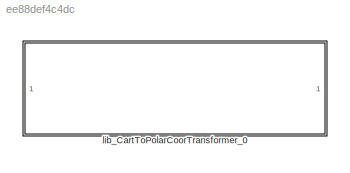
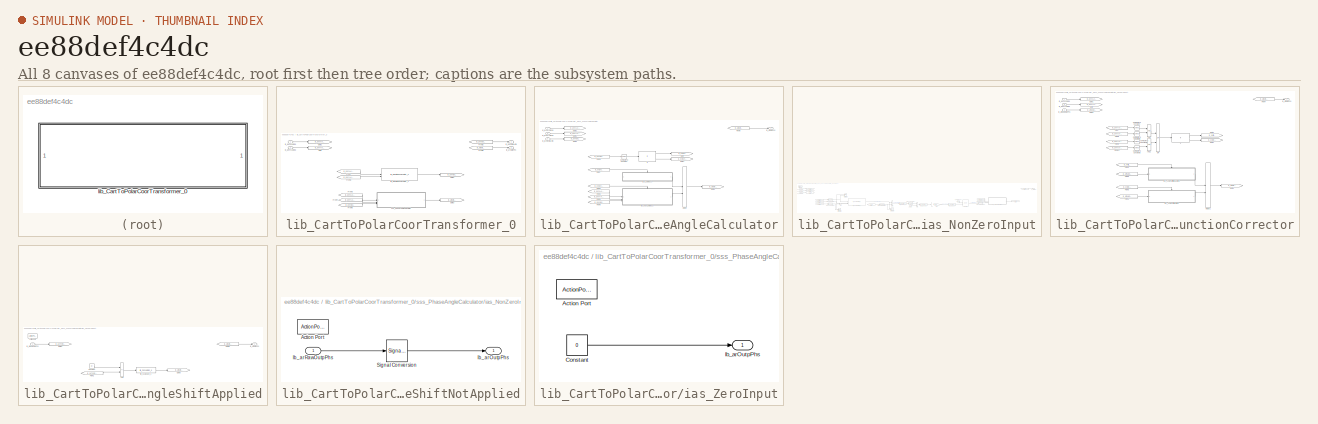
[diagram: thumbnail index - all 8 canvases of the model, root first then tree order]
MODEL slx_ee88def4c4dc
KIND library
CONFIG AbsTol = auto
CONFIG EnableMultiTasking = off
CONFIG FixedStep = auto
CONFIG MaxStep = auto
CONFIG MinStep = auto
CONFIG RelTol = 1e-3
CONFIG SampleTimeConstraint = Unconstrained
CONFIG SolverName = VariableStepAuto
CONFIG StartTime = 0.0
CONFIG StopTime = 10.0
BLOCK [SubSystem] lib_CartToPolarCoorTransformer_0
BLOCK [From] lib_CartToPolarCoorTransformer_0/From
  GotoTag = lb_genXAxisInp
BLOCK [From] lib_CartToPolarCoorTransformer_0/From1
  GotoTag = lb_genYAxisInp
BLOCK [From] lib_CartToPolarCoorTransformer_0/From2
  GotoTag = lb_genOutpAmp
BLOCK [From] lib_CartToPolarCoorTransformer_0/From3
  GotoTag = lb_genXAxisInp
BLOCK [From] lib_CartToPolarCoorTransformer_0/From4
  GotoTag = lb_genYAxisInp
BLOCK [From] lib_CartToPolarCoorTransformer_0/From5
  GotoTag = lb_genOutpAmp
BLOCK [From] lib_CartToPolarCoorTransformer_0/From8
  GotoTag = lb_arOutpPhs
BLOCK [Goto] lib_CartToPolarCoorTransformer_0/Goto
  GotoTag = lb_genYAxisInp
BLOCK [Goto] lib_CartToPolarCoorTransformer_0/Goto1
  GotoTag = lb_genXAxisInp
BLOCK [Goto] lib_CartToPolarCoorTransformer_0/Goto2
  GotoTag = lb_genOutpAmp
BLOCK [Goto] lib_CartToPolarCoorTransformer_0/Goto3
  GotoTag = lb_arOutpPhs
BLOCK [Outport] lib_CartToPolarCoorTransformer_0/lb_arOutpPhs
  Port = 2
BLOCK [Outport] lib_CartToPolarCoorTransformer_0/lb_genOutpAmp
BLOCK [Inport] lib_CartToPolarCoorTransformer_0/lb_genXAxisInp
BLOCK [Inport] lib_CartToPolarCoorTransformer_0/lb_genYAxisInp
  Port = 2
BLOCK [Reference] lib_CartToPolarCoorTransformer_0/lib_MagnitudeCalculator_1  REF=lib_magnitude_calculator/lib_MagnitudeCalculator_0
  SourceBlock = lib_magnitude_calculator/lib_MagnitudeCalculator_0
BLOCK [SubSystem] lib_CartToPolarCoorTransformer_0/sss_PhaseAngleCalculator
BLOCK [Reference] lib_CartToPolarCoorTransformer_0/sss_PhaseAngleCalculator/Compare To Constant  REF=simulink/Logic and Bit
Operations/Compare
To Constant
  SourceBlock = simulink/Logic and Bit\nOperations/Compare\nTo Constant
  SourceType = Compare To Constant
BLOCK [From] lib_CartToPolarCoorTransformer_0/sss_PhaseAngleCalculator/From
  GotoTag = lb_bolZeroInpEnbl
BLOCK [From] lib_CartToPolarCoorTransformer_0/sss_PhaseAngleCalculator/From1
  GotoTag = lb_bolNonZeroInpEnbl
BLOCK [From] lib_CartToPolarCoorTransformer_0/sss_PhaseAngleCalculator/From2
  GotoTag = lb_genXAxisInp
BLOCK [From] lib_CartToPolarCoorTransformer_0/sss_PhaseAngleCalculator/From3
  GotoTag = lb_genOutpAmp
BLOCK [From] lib_CartToPolarCoorTransformer_0/sss_PhaseAngleCalculator/From4
  GotoTag = lb_genYAxisInp
BLOCK [From] lib_CartToPolarCoorTransformer_0/sss_PhaseAngleCalculator/From5
  GotoTag = lb_genOutpAmp
BLOCK [From] lib_CartToPolarCoorTransformer_0/sss_PhaseAngleCalculator/From6
  GotoTag = lb_arOutpPhs
BLOCK [Goto] lib_CartToPolarCoorTransformer_0/sss_PhaseAngleCalculator/Goto
  GotoTag = lb_bolZeroInpEnbl
BLOCK [Goto] lib_CartToPolarCoorTransformer_0/sss_PhaseAngleCalculator/Goto1
  GotoTag = lb_genYAxisInp
BLOCK [Goto] lib_CartToPolarCoorTransformer_0/sss_PhaseAngleCalculator/Goto2
  GotoTag = lb_genXAxisInp
BLOCK [Goto] lib_CartToPolarCoorTransformer_0/sss_PhaseAngleCalculator/Goto3
  GotoTag = lb_genOutpAmp
BLOCK [Goto] lib_CartToPolarCoorTransformer_0/sss_PhaseAngleCalculator/Goto4
  GotoTag = lb_bolNonZeroInpEnbl
BLOCK [Goto] lib_CartToPolarCoorTransformer_0/sss_PhaseAngleCalculator/Goto5
  GotoTag = lb_arOutpPhs
BLOCK [If] lib_CartToPolarCoorTransformer_0/sss_PhaseAngleCalculator/If
  IfExpression = u1
BLOCK [Merge] lib_CartToPolarCoorTransformer_0/sss_PhaseAngleCalculator/Merge
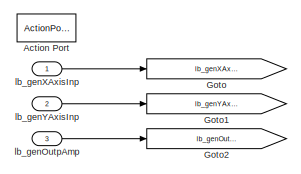
[diagram: lib_CartToPolarCoorTransformer_0/sss_PhaseAngleCalculator/ias_NonZeroInput - part 1/5, top left region]
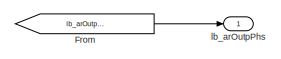
[diagram: lib_CartToPolarCoorTransformer_0/sss_PhaseAngleCalculator/ias_NonZeroInput - part 2/5, top right region]
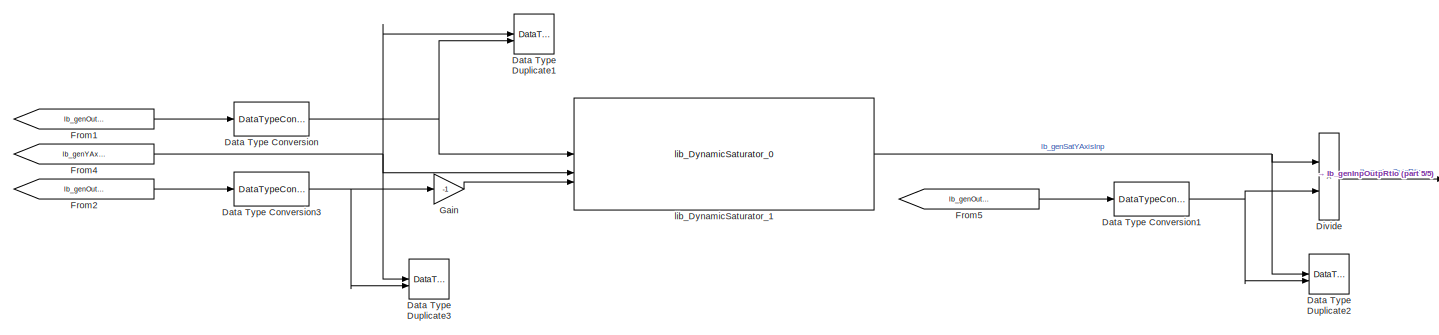
[diagram: lib_CartToPolarCoorTransformer_0/sss_PhaseAngleCalculator/ias_NonZeroInput - part 3/5, middle left region]
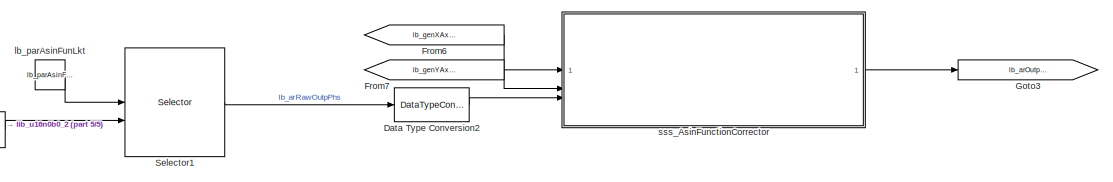
[diagram: lib_CartToPolarCoorTransformer_0/sss_PhaseAngleCalculator/ias_NonZeroInput - part 4/5, middle right region]
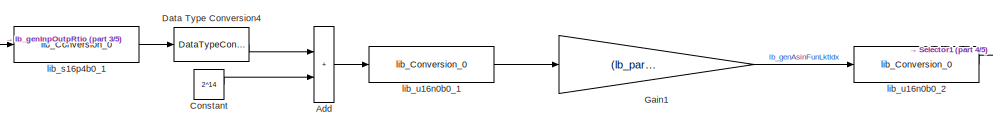
[diagram: lib_CartToPolarCoorTransformer_0/sss_PhaseAngleCalculator/ias_NonZeroInput - part 5/5, bottom center region]
BLOCK [SubSystem] lib_CartToPolarCoorTransformer_0/sss_PhaseAngleCalculator/ias_NonZeroInput
  RTWSystemCode = Inline
  TreatAsAtomicUnit = on
BLOCK [ActionPort] lib_CartToPolarCoorTransformer_0/sss_PhaseAngleCalculator/ias_NonZeroInput/Action Port
BLOCK [Sum] lib_CartToPolarCoorTransformer_0/sss_PhaseAngleCalculator/ias_NonZeroInput/Add
  IconShape = rectangular
  OutDataTypeStr = Inherit: Inherit via back propagation
  RndMeth = Simplest
BLOCK [Constant] lib_CartToPolarCoorTransformer_0/sss_PhaseAngleCalculator/ias_NonZeroInput/Constant
  OutDataTypeStr = uint16
  Value = 2^14
BLOCK [DataTypeConversion] lib_CartToPolarCoorTransformer_0/sss_PhaseAngleCalculator/ias_NonZeroInput/Data Type Conversion
  RndMeth = Floor
  SaturateOnIntegerOverflow = off
BLOCK [DataTypeConversion] lib_CartToPolarCoorTransformer_0/sss_PhaseAngleCalculator/ias_NonZeroInput/Data Type Conversion1
  RndMeth = Floor
  SaturateOnIntegerOverflow = off
BLOCK [DataTypeConversion] lib_CartToPolarCoorTransformer_0/sss_PhaseAngleCalculator/ias_NonZeroInput/Data Type Conversion2
  OutDataTypeStr = fixdt(0,16,pi*2^-15,0)
  RndMeth = Floor
  SaturateOnIntegerOverflow = off
BLOCK [DataTypeConversion] lib_CartToPolarCoorTransformer_0/sss_PhaseAngleCalculator/ias_NonZeroInput/Data Type Conversion3
  RndMeth = Floor
  SaturateOnIntegerOverflow = off
BLOCK [DataTypeConversion] lib_CartToPolarCoorTransformer_0/sss_PhaseAngleCalculator/ias_NonZeroInput/Data Type Conversion4
  ConvertRealWorld = Stored Integer (SI)
  OutDataTypeStr = int16
  RndMeth = Simplest
  SaturateOnIntegerOverflow = off
BLOCK [DataTypeDuplicate] lib_CartToPolarCoorTransformer_0/sss_PhaseAngleCalculator/ias_NonZeroInput/Data Type Duplicate1
BLOCK [DataTypeDuplicate] lib_CartToPolarCoorTransformer_0/sss_PhaseAngleCalculator/ias_NonZeroInput/Data Type Duplicate2
BLOCK [DataTypeDuplicate] lib_CartToPolarCoorTransformer_0/sss_PhaseAngleCalculator/ias_NonZeroInput/Data Type Duplicate3
BLOCK [Product] lib_CartToPolarCoorTransformer_0/sss_PhaseAngleCalculator/ias_NonZeroInput/Divide
  Inputs = */
  OutDataTypeStr = Inherit: Inherit via back propagation
  RndMeth = Simplest
BLOCK [From] lib_CartToPolarCoorTransformer_0/sss_PhaseAngleCalculator/ias_NonZeroInput/From
  GotoTag = lb_arOutpPhs
BLOCK [From] lib_CartToPolarCoorTransformer_0/sss_PhaseAngleCalculator/ias_NonZeroInput/From1
  GotoTag = lb_genOutpAmp
BLOCK [From] lib_CartToPolarCoorTransformer_0/sss_PhaseAngleCalculator/ias_NonZeroInput/From2
  GotoTag = lb_genOutpAmp
BLOCK [From] lib_CartToPolarCoorTransformer_0/sss_PhaseAngleCalculator/ias_NonZeroInput/From4
  GotoTag = lb_genYAxisInp
BLOCK [From] lib_CartToPolarCoorTransformer_0/sss_PhaseAngleCalculator/ias_NonZeroInput/From5
  GotoTag = lb_genOutpAmp
BLOCK [From] lib_CartToPolarCoorTransformer_0/sss_PhaseAngleCalculator/ias_NonZeroInput/From6
  GotoTag = lb_genXAxisInp
BLOCK [From] lib_CartToPolarCoorTransformer_0/sss_PhaseAngleCalculator/ias_NonZeroInput/From7
  GotoTag = lb_genYAxisInp
BLOCK [Gain] lib_CartToPolarCoorTransformer_0/sss_PhaseAngleCalculator/ias_NonZeroInput/Gain
  Gain = -1
  OutDataTypeStr = Inherit: Same as input
  RndMeth = Simplest
BLOCK [Gain] lib_CartToPolarCoorTransformer_0/sss_PhaseAngleCalculator/ias_NonZeroInput/Gain1
  Gain = (lb_parAsinLktSizeNum-1)/2^15
  OutDataTypeStr = uint16
  RndMeth = Simplest
BLOCK [Goto] lib_CartToPolarCoorTransformer_0/sss_PhaseAngleCalculator/ias_NonZeroInput/Goto
  GotoTag = lb_genXAxisInp
BLOCK [Goto] lib_CartToPolarCoorTransformer_0/sss_PhaseAngleCalculator/ias_NonZeroInput/Goto1
  GotoTag = lb_genYAxisInp
BLOCK [Goto] lib_CartToPolarCoorTransformer_0/sss_PhaseAngleCalculator/ias_NonZeroInput/Goto2
  GotoTag = lb_genOutpAmp
BLOCK [Goto] lib_CartToPolarCoorTransformer_0/sss_PhaseAngleCalculator/ias_NonZeroInput/Goto3
  GotoTag = lb_arOutpPhs
BLOCK [Selector] lib_CartToPolarCoorTransformer_0/sss_PhaseAngleCalculator/ias_NonZeroInput/Selector1
  IndexMode = Zero-based
  IndexOptions = Index vector (port)
  Indices = [1 3]
  InputPortWidth = lb_parAsinLktSizeNum
  OutputSizes = 1
BLOCK [Outport] lib_CartToPolarCoorTransformer_0/sss_PhaseAngleCalculator/ias_NonZeroInput/lb_arOutpPhs
BLOCK [Inport] lib_CartToPolarCoorTransformer_0/sss_PhaseAngleCalculator/ias_NonZeroInput/lb_genOutpAmp
  Port = 3
BLOCK [Inport] lib_CartToPolarCoorTransformer_0/sss_PhaseAngleCalculator/ias_NonZeroInput/lb_genXAxisInp
BLOCK [Inport] lib_CartToPolarCoorTransformer_0/sss_PhaseAngleCalculator/ias_NonZeroInput/lb_genYAxisInp
  Port = 2
BLOCK [Constant] lib_CartToPolarCoorTransformer_0/sss_PhaseAngleCalculator/ias_NonZeroInput/lb_parAsinFunLkt
  OutDataTypeStr = fixdt(1,16,pi*2^-15,0)
  Value = lb_parAsinFunLkt
BLOCK [Reference] lib_CartToPolarCoorTransformer_0/sss_PhaseAngleCalculator/ias_NonZeroInput/lib_DynamicSaturator_1  REF=lib_dynamic_saturator/lib_DynamicSaturator_0  (lib defined in slx_fcc78f0d1256)
  SourceBlock = lib_dynamic_saturator/lib_DynamicSaturator_0
BLOCK [Reference] lib_CartToPolarCoorTransformer_0/sss_PhaseAngleCalculator/ias_NonZeroInput/lib_s16p4b0_1  REF=lib_conversion/lib_Conversion_0  (lib defined in slx_7f5c0202220d)
  SourceBlock = lib_conversion/lib_Conversion_0
BLOCK [Reference] lib_CartToPolarCoorTransformer_0/sss_PhaseAngleCalculator/ias_NonZeroInput/lib_u16n0b0_1  REF=lib_conversion/lib_Conversion_0  (lib defined in slx_7f5c0202220d)
  SourceBlock = lib_conversion/lib_Conversion_0
BLOCK [Reference] lib_CartToPolarCoorTransformer_0/sss_PhaseAngleCalculator/ias_NonZeroInput/lib_u16n0b0_2  REF=lib_conversion/lib_Conversion_0  (lib defined in slx_7f5c0202220d)
  SourceBlock = lib_conversion/lib_Conversion_0
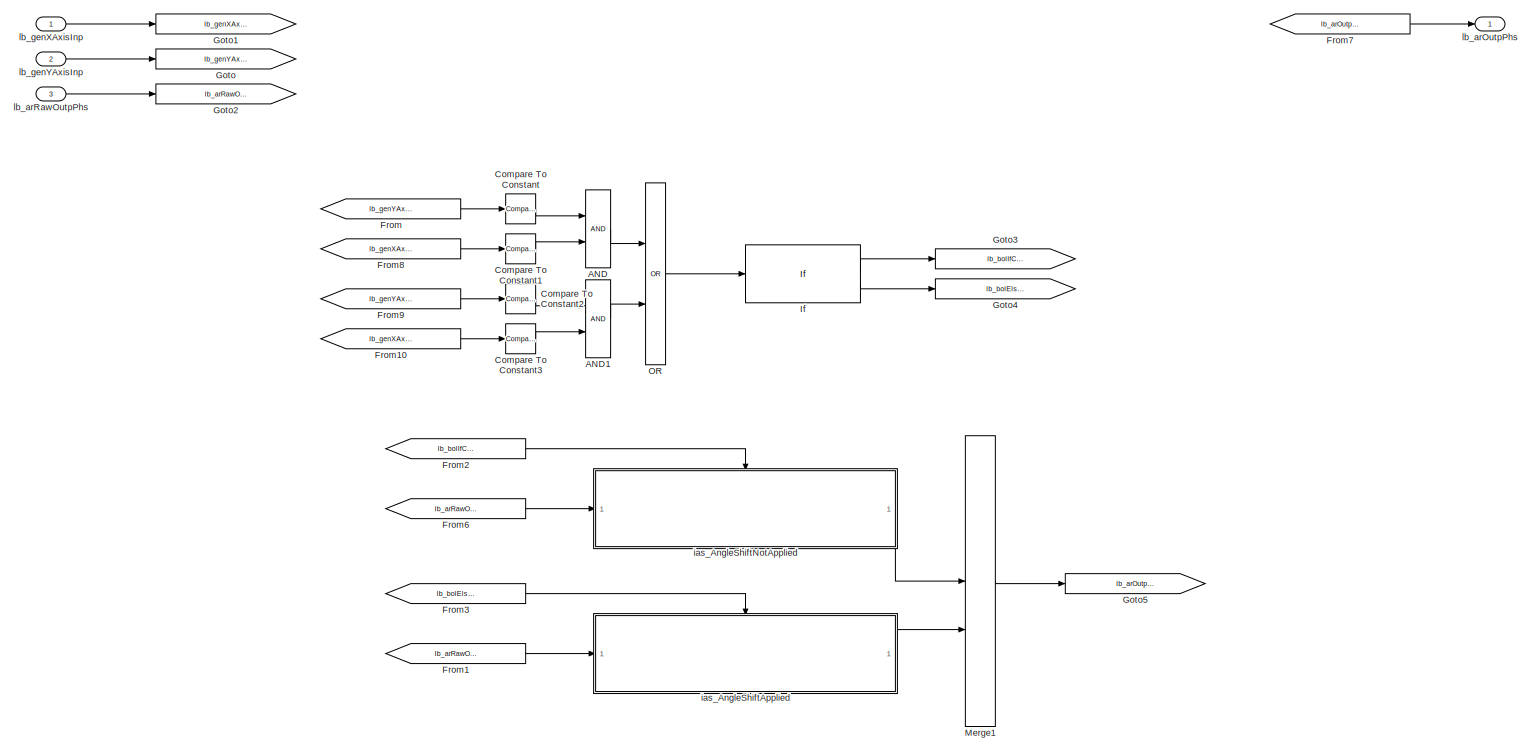
[diagram: lib_CartToPolarCoorTransformer_0/sss_PhaseAngleCalculator/ias_NonZeroInput/sss_AsinFunctionCorrector - part 1/1, most of the canvas]
BLOCK [SubSystem] lib_CartToPolarCoorTransformer_0/sss_PhaseAngleCalculator/ias_NonZeroInput/sss_AsinFunctionCorrector
BLOCK [Logic] lib_CartToPolarCoorTransformer_0/sss_PhaseAngleCalculator/ias_NonZeroInput/sss_AsinFunctionCorrector/AND
  AllPortsSameDT = off
  OutDataTypeStr = boolean
BLOCK [Logic] lib_CartToPolarCoorTransformer_0/sss_PhaseAngleCalculator/ias_NonZeroInput/sss_AsinFunctionCorrector/AND1
  AllPortsSameDT = off
  OutDataTypeStr = boolean
BLOCK [Reference] lib_CartToPolarCoorTransformer_0/sss_PhaseAngleCalculator/ias_NonZeroInput/sss_AsinFunctionCorrector/Compare To Constant  REF=simulink/Logic and Bit
Operations/Compare
To Constant
  SourceBlock = simulink/Logic and Bit\nOperations/Compare\nTo Constant
  SourceType = Compare To Constant
BLOCK [Reference] lib_CartToPolarCoorTransformer_0/sss_PhaseAngleCalculator/ias_NonZeroInput/sss_AsinFunctionCorrector/Compare To Constant1  REF=simulink/Logic and Bit
Operations/Compare
To Constant
  SourceBlock = simulink/Logic and Bit\nOperations/Compare\nTo Constant
  SourceType = Compare To Constant
BLOCK [Reference] lib_CartToPolarCoorTransformer_0/sss_PhaseAngleCalculator/ias_NonZeroInput/sss_AsinFunctionCorrector/Compare To Constant2  REF=simulink/Logic and Bit
Operations/Compare
To Constant
  SourceBlock = simulink/Logic and Bit\nOperations/Compare\nTo Constant
  SourceType = Compare To Constant
BLOCK [Reference] lib_CartToPolarCoorTransformer_0/sss_PhaseAngleCalculator/ias_NonZeroInput/sss_AsinFunctionCorrector/Compare To Constant3  REF=simulink/Logic and Bit
Operations/Compare
To Constant
  SourceBlock = simulink/Logic and Bit\nOperations/Compare\nTo Constant
  SourceType = Compare To Constant
BLOCK [From] lib_CartToPolarCoorTransformer_0/sss_PhaseAngleCalculator/ias_NonZeroInput/sss_AsinFunctionCorrector/From
  GotoTag = lb_genYAxisInp
BLOCK [From] lib_CartToPolarCoorTransformer_0/sss_PhaseAngleCalculator/ias_NonZeroInput/sss_AsinFunctionCorrector/From1
  GotoTag = lb_arRawOutpPhs
BLOCK [From] lib_CartToPolarCoorTransformer_0/sss_PhaseAngleCalculator/ias_NonZeroInput/sss_AsinFunctionCorrector/From10
  GotoTag = lb_genXAxisInp
BLOCK [From] lib_CartToPolarCoorTransformer_0/sss_PhaseAngleCalculator/ias_NonZeroInput/sss_AsinFunctionCorrector/From2
  GotoTag = lb_bolIfCond
BLOCK [From] lib_CartToPolarCoorTransformer_0/sss_PhaseAngleCalculator/ias_NonZeroInput/sss_AsinFunctionCorrector/From3
  GotoTag = lb_bolElseCond
BLOCK [From] lib_CartToPolarCoorTransformer_0/sss_PhaseAngleCalculator/ias_NonZeroInput/sss_AsinFunctionCorrector/From6
  GotoTag = lb_arRawOutpPhs
BLOCK [From] lib_CartToPolarCoorTransformer_0/sss_PhaseAngleCalculator/ias_NonZeroInput/sss_AsinFunctionCorrector/From7
  GotoTag = lb_arOutpPhs
BLOCK [From] lib_CartToPolarCoorTransformer_0/sss_PhaseAngleCalculator/ias_NonZeroInput/sss_AsinFunctionCorrector/From8
  GotoTag = lb_genXAxisInp
BLOCK [From] lib_CartToPolarCoorTransformer_0/sss_PhaseAngleCalculator/ias_NonZeroInput/sss_AsinFunctionCorrector/From9
  GotoTag = lb_genYAxisInp
BLOCK [Goto] lib_CartToPolarCoorTransformer_0/sss_PhaseAngleCalculator/ias_NonZeroInput/sss_AsinFunctionCorrector/Goto
  GotoTag = lb_genYAxisInp
BLOCK [Goto] lib_CartToPolarCoorTransformer_0/sss_PhaseAngleCalculator/ias_NonZeroInput/sss_AsinFunctionCorrector/Goto1
  GotoTag = lb_genXAxisInp
BLOCK [Goto] lib_CartToPolarCoorTransformer_0/sss_PhaseAngleCalculator/ias_NonZeroInput/sss_AsinFunctionCorrector/Goto2
  GotoTag = lb_arRawOutpPhs
BLOCK [Goto] lib_CartToPolarCoorTransformer_0/sss_PhaseAngleCalculator/ias_NonZeroInput/sss_AsinFunctionCorrector/Goto3
  GotoTag = lb_bolIfCond
BLOCK [Goto] lib_CartToPolarCoorTransformer_0/sss_PhaseAngleCalculator/ias_NonZeroInput/sss_AsinFunctionCorrector/Goto4
  GotoTag = lb_bolElseCond
BLOCK [Goto] lib_CartToPolarCoorTransformer_0/sss_PhaseAngleCalculator/ias_NonZeroInput/sss_AsinFunctionCorrector/Goto5
  GotoTag = lb_arOutpPhs
BLOCK [If] lib_CartToPolarCoorTransformer_0/sss_PhaseAngleCalculator/ias_NonZeroInput/sss_AsinFunctionCorrector/If
  IfExpression = u1
BLOCK [Merge] lib_CartToPolarCoorTransformer_0/sss_PhaseAngleCalculator/ias_NonZeroInput/sss_AsinFunctionCorrector/Merge1
BLOCK [Logic] lib_CartToPolarCoorTransformer_0/sss_PhaseAngleCalculator/ias_NonZeroInput/sss_AsinFunctionCorrector/OR
  AllPortsSameDT = off
  Operator = OR
  OutDataTypeStr = boolean
BLOCK [SubSystem] lib_CartToPolarCoorTransformer_0/sss_PhaseAngleCalculator/ias_NonZeroInput/sss_AsinFunctionCorrector/ias_AngleShiftApplied
  TreatAsAtomicUnit = on
BLOCK [ActionPort] lib_CartToPolarCoorTransformer_0/sss_PhaseAngleCalculator/ias_NonZeroInput/sss_AsinFunctionCorrector/ias_AngleShiftApplied/Action Port
BLOCK [Sum] lib_CartToPolarCoorTransformer_0/sss_PhaseAngleCalculator/ias_NonZeroInput/sss_AsinFunctionCorrector/ias_AngleShiftApplied/Add
  IconShape = rectangular
  Inputs = +-
  OutDataTypeStr = Inherit: Inherit via back propagation
  RndMeth = Simplest
BLOCK [Constant] lib_CartToPolarCoorTransformer_0/sss_PhaseAngleCalculator/ias_NonZeroInput/sss_AsinFunctionCorrector/ias_AngleShiftApplied/Constant
  OutDataTypeStr = fixdt(0,16,pi*2^-15,0)
  Value = pi
BLOCK [From] lib_CartToPolarCoorTransformer_0/sss_PhaseAngleCalculator/ias_NonZeroInput/sss_AsinFunctionCorrector/ias_AngleShiftApplied/From1
  GotoTag = lb_agTempAsinRslt
BLOCK [From] lib_CartToPolarCoorTransformer_0/sss_PhaseAngleCalculator/ias_NonZeroInput/sss_AsinFunctionCorrector/ias_AngleShiftApplied/From5
  GotoTag = lb_arOutpPhs
BLOCK [Goto] lib_CartToPolarCoorTransformer_0/sss_PhaseAngleCalculator/ias_NonZeroInput/sss_AsinFunctionCorrector/ias_AngleShiftApplied/Goto2
  GotoTag = lb_agTempAsinRslt
BLOCK [Goto] lib_CartToPolarCoorTransformer_0/sss_PhaseAngleCalculator/ias_NonZeroInput/sss_AsinFunctionCorrector/ias_AngleShiftApplied/Goto5
  GotoTag = lb_arOutpPhs
BLOCK [Outport] lib_CartToPolarCoorTransformer_0/sss_PhaseAngleCalculator/ias_NonZeroInput/sss_AsinFunctionCorrector/ias_AngleShiftApplied/lb_arOutpPhs
BLOCK [Inport] lib_CartToPolarCoorTransformer_0/sss_PhaseAngleCalculator/ias_NonZeroInput/sss_AsinFunctionCorrector/ias_AngleShiftApplied/lb_arRawOutpPhs
BLOCK [Reference] lib_CartToPolarCoorTransformer_0/sss_PhaseAngleCalculator/ias_NonZeroInput/sss_AsinFunctionCorrector/ias_AngleShiftApplied/lib_u16r15b0_1  REF=lib_conversion/lib_Conversion_0  (lib defined in slx_7f5c0202220d)
  SourceBlock = lib_conversion/lib_Conversion_0
BLOCK [SubSystem] lib_CartToPolarCoorTransformer_0/sss_PhaseAngleCalculator/ias_NonZeroInput/sss_AsinFunctionCorrector/ias_AngleShiftNotApplied
  TreatAsAtomicUnit = on
BLOCK [ActionPort] lib_CartToPolarCoorTransformer_0/sss_PhaseAngleCalculator/ias_NonZeroInput/sss_AsinFunctionCorrector/ias_AngleShiftNotApplied/Action Port
BLOCK [SignalConversion] lib_CartToPolarCoorTransformer_0/sss_PhaseAngleCalculator/ias_NonZeroInput/sss_AsinFunctionCorrector/ias_AngleShiftNotApplied/Signal Conversion
  OverrideOpt = off
BLOCK [Outport] lib_CartToPolarCoorTransformer_0/sss_PhaseAngleCalculator/ias_NonZeroInput/sss_AsinFunctionCorrector/ias_AngleShiftNotApplied/lb_arOutpPhs
BLOCK [Inport] lib_CartToPolarCoorTransformer_0/sss_PhaseAngleCalculator/ias_NonZeroInput/sss_AsinFunctionCorrector/ias_AngleShiftNotApplied/lb_arRawOutpPhs
BLOCK [Outport] lib_CartToPolarCoorTransformer_0/sss_PhaseAngleCalculator/ias_NonZeroInput/sss_AsinFunctionCorrector/lb_arOutpPhs
BLOCK [Inport] lib_CartToPolarCoorTransformer_0/sss_PhaseAngleCalculator/ias_NonZeroInput/sss_AsinFunctionCorrector/lb_arRawOutpPhs
  Port = 3
BLOCK [Inport] lib_CartToPolarCoorTransformer_0/sss_PhaseAngleCalculator/ias_NonZeroInput/sss_AsinFunctionCorrector/lb_genXAxisInp
BLOCK [Inport] lib_CartToPolarCoorTransformer_0/sss_PhaseAngleCalculator/ias_NonZeroInput/sss_AsinFunctionCorrector/lb_genYAxisInp
  Port = 2
BLOCK [SubSystem] lib_CartToPolarCoorTransformer_0/sss_PhaseAngleCalculator/ias_ZeroInput
  RTWSystemCode = Inline
  TreatAsAtomicUnit = on
BLOCK [ActionPort] lib_CartToPolarCoorTransformer_0/sss_PhaseAngleCalculator/ias_ZeroInput/Action Port
BLOCK [Constant] lib_CartToPolarCoorTransformer_0/sss_PhaseAngleCalculator/ias_ZeroInput/Constant
  OutDataTypeStr = fixdt(0,16,pi*2^-15,0)
  Value = 0
BLOCK [Outport] lib_CartToPolarCoorTransformer_0/sss_PhaseAngleCalculator/ias_ZeroInput/lb_arOutpPhs
BLOCK [Outport] lib_CartToPolarCoorTransformer_0/sss_PhaseAngleCalculator/lb_arOutpPhs
BLOCK [Inport] lib_CartToPolarCoorTransformer_0/sss_PhaseAngleCalculator/lb_genOutpAmp
  Port = 3
BLOCK [Inport] lib_CartToPolarCoorTransformer_0/sss_PhaseAngleCalculator/lb_genXAxisInp
BLOCK [Inport] lib_CartToPolarCoorTransformer_0/sss_PhaseAngleCalculator/lb_genYAxisInp
  Port = 2
LINE lib_CartToPolarCoorTransformer_0/From1:1 -> lib_CartToPolarCoorTransformer_0/lib_MagnitudeCalculator_1:2
LINE lib_CartToPolarCoorTransformer_0/From2:1 -> lib_CartToPolarCoorTransformer_0/lb_genOutpAmp:1
LINE lib_CartToPolarCoorTransformer_0/From3:1 -> lib_CartToPolarCoorTransformer_0/sss_PhaseAngleCalculator:1
LINE lib_CartToPolarCoorTransformer_0/From4:1 -> lib_CartToPolarCoorTransformer_0/sss_PhaseAngleCalculator:2
LINE lib_CartToPolarCoorTransformer_0/From5:1 -> lib_CartToPolarCoorTransformer_0/sss_PhaseAngleCalculator:3
LINE lib_CartToPolarCoorTransformer_0/From8:1 -> lib_CartToPolarCoorTransformer_0/lb_arOutpPhs:1
LINE lib_CartToPolarCoorTransformer_0/From:1 -> lib_CartToPolarCoorTransformer_0/lib_MagnitudeCalculator_1:1
LINE lib_CartToPolarCoorTransformer_0/lb_genXAxisInp:1 -> lib_CartToPolarCoorTransformer_0/Goto1:1
LINE lib_CartToPolarCoorTransformer_0/lb_genYAxisInp:1 -> lib_CartToPolarCoorTransformer_0/Goto:1
LINE lib_CartToPolarCoorTransformer_0/lib_MagnitudeCalculator_1:1 -> lib_CartToPolarCoorTransformer_0/Goto2:1
LINE lib_CartToPolarCoorTransformer_0/sss_PhaseAngleCalculator/Compare To Constant:1 -> lib_CartToPolarCoorTransformer_0/sss_PhaseAngleCalculator/If:1
LINE lib_CartToPolarCoorTransformer_0/sss_PhaseAngleCalculator/From1:1 -> lib_CartToPolarCoorTransformer_0/sss_PhaseAngleCalculator/ias_NonZeroInput:ifaction
LINE lib_CartToPolarCoorTransformer_0/sss_PhaseAngleCalculator/From2:1 -> lib_CartToPolarCoorTransformer_0/sss_PhaseAngleCalculator/ias_NonZeroInput:1
LINE lib_CartToPolarCoorTransformer_0/sss_PhaseAngleCalculator/From3:1 -> lib_CartToPolarCoorTransformer_0/sss_PhaseAngleCalculator/Compare To Constant:1
LINE lib_CartToPolarCoorTransformer_0/sss_PhaseAngleCalculator/From4:1 -> lib_CartToPolarCoorTransformer_0/sss_PhaseAngleCalculator/ias_NonZeroInput:2
LINE lib_CartToPolarCoorTransformer_0/sss_PhaseAngleCalculator/From5:1 -> lib_CartToPolarCoorTransformer_0/sss_PhaseAngleCalculator/ias_NonZeroInput:3
LINE lib_CartToPolarCoorTransformer_0/sss_PhaseAngleCalculator/From6:1 -> lib_CartToPolarCoorTransformer_0/sss_PhaseAngleCalculator/lb_arOutpPhs:1
LINE lib_CartToPolarCoorTransformer_0/sss_PhaseAngleCalculator/From:1 -> lib_CartToPolarCoorTransformer_0/sss_PhaseAngleCalculator/ias_ZeroInput:ifaction
LINE lib_CartToPolarCoorTransformer_0/sss_PhaseAngleCalculator/If:1 -> lib_CartToPolarCoorTransformer_0/sss_PhaseAngleCalculator/Goto:1
LINE lib_CartToPolarCoorTransformer_0/sss_PhaseAngleCalculator/If:2 -> lib_CartToPolarCoorTransformer_0/sss_PhaseAngleCalculator/Goto4:1
LINE lib_CartToPolarCoorTransformer_0/sss_PhaseAngleCalculator/Merge:1 -> lib_CartToPolarCoorTransformer_0/sss_PhaseAngleCalculator/Goto5:1
LINE lib_CartToPolarCoorTransformer_0/sss_PhaseAngleCalculator/ias_NonZeroInput/Add:1 -> lib_CartToPolarCoorTransformer_0/sss_PhaseAngleCalculator/ias_NonZeroInput/lib_u16n0b0_1:1
LINE lib_CartToPolarCoorTransformer_0/sss_PhaseAngleCalculator/ias_NonZeroInput/Constant:1 -> lib_CartToPolarCoorTransformer_0/sss_PhaseAngleCalculator/ias_NonZeroInput/Add:2
NET lib_CartToPolarCoorTransformer_0/sss_PhaseAngleCalculator/ias_NonZeroInput/Data Type Conversion1:1 -> lib_CartToPolarCoorTransformer_0/sss_PhaseAngleCalculator/ias_NonZeroInput/Data Type Duplicate2:2, lib_CartToPolarCoorTransformer_0/sss_PhaseAngleCalculator/ias_NonZeroInput/Divide:2
LINE lib_CartToPolarCoorTransformer_0/sss_PhaseAngleCalculator/ias_NonZeroInput/Data Type Conversion2:1 -> lib_CartToPolarCoorTransformer_0/sss_PhaseAngleCalculator/ias_NonZeroInput/sss_AsinFunctionCorrector:3
NET lib_CartToPolarCoorTransformer_0/sss_PhaseAngleCalculator/ias_NonZeroInput/Data Type Conversion3:1 -> lib_CartToPolarCoorTransformer_0/sss_PhaseAngleCalculator/ias_NonZeroInput/Data Type Duplicate3:2, lib_CartToPolarCoorTransformer_0/sss_PhaseAngleCalculator/ias_NonZeroInput/Gain:1
LINE lib_CartToPolarCoorTransformer_0/sss_PhaseAngleCalculator/ias_NonZeroInput/Data Type Conversion4:1 -> lib_CartToPolarCoorTransformer_0/sss_PhaseAngleCalculator/ias_NonZeroInput/Add:1
NET lib_CartToPolarCoorTransformer_0/sss_PhaseAngleCalculator/ias_NonZeroInput/Data Type Conversion:1 -> lib_CartToPolarCoorTransformer_0/sss_PhaseAngleCalculator/ias_NonZeroInput/Data Type Duplicate1:2, lib_CartToPolarCoorTransformer_0/sss_PhaseAngleCalculator/ias_NonZeroInput/lib_DynamicSaturator_1:1
LINE lib_CartToPolarCoorTransformer_0/sss_PhaseAngleCalculator/ias_NonZeroInput/Divide:1 -> lib_CartToPolarCoorTransformer_0/sss_PhaseAngleCalculator/ias_NonZeroInput/lib_s16p4b0_1:1
LINE lib_CartToPolarCoorTransformer_0/sss_PhaseAngleCalculator/ias_NonZeroInput/From1:1 -> lib_CartToPolarCoorTransformer_0/sss_PhaseAngleCalculator/ias_NonZeroInput/Data Type Conversion:1
LINE lib_CartToPolarCoorTransformer_0/sss_PhaseAngleCalculator/ias_NonZeroInput/From2:1 -> lib_CartToPolarCoorTransformer_0/sss_PhaseAngleCalculator/ias_NonZeroInput/Data Type Conversion3:1
NET lib_CartToPolarCoorTransformer_0/sss_PhaseAngleCalculator/ias_NonZeroInput/From4:1 -> lib_CartToPolarCoorTransformer_0/sss_PhaseAngleCalculator/ias_NonZeroInput/Data Type Duplicate1:1, lib_CartToPolarCoorTransformer_0/sss_PhaseAngleCalculator/ias_NonZeroInput/Data Type Duplicate3:1, lib_CartToPolarCoorTransformer_0/sss_PhaseAngleCalculator/ias_NonZeroInput/lib_DynamicSaturator_1:2
LINE lib_CartToPolarCoorTransformer_0/sss_PhaseAngleCalculator/ias_NonZeroInput/From5:1 -> lib_CartToPolarCoorTransformer_0/sss_PhaseAngleCalculator/ias_NonZeroInput/Data Type Conversion1:1
LINE lib_CartToPolarCoorTransformer_0/sss_PhaseAngleCalculator/ias_NonZeroInput/From6:1 -> lib_CartToPolarCoorTransformer_0/sss_PhaseAngleCalculator/ias_NonZeroInput/sss_AsinFunctionCorrector:1
LINE lib_CartToPolarCoorTransformer_0/sss_PhaseAngleCalculator/ias_NonZeroInput/From7:1 -> lib_CartToPolarCoorTransformer_0/sss_PhaseAngleCalculator/ias_NonZeroInput/sss_AsinFunctionCorrector:2
LINE lib_CartToPolarCoorTransformer_0/sss_PhaseAngleCalculator/ias_NonZeroInput/From:1 -> lib_CartToPolarCoorTransformer_0/sss_PhaseAngleCalculator/ias_NonZeroInput/lb_arOutpPhs:1
LINE lib_CartToPolarCoorTransformer_0/sss_PhaseAngleCalculator/ias_NonZeroInput/Gain1:1 -> lib_CartToPolarCoorTransformer_0/sss_PhaseAngleCalculator/ias_NonZeroInput/lib_u16n0b0_2:1
LINE lib_CartToPolarCoorTransformer_0/sss_PhaseAngleCalculator/ias_NonZeroInput/Gain:1 -> lib_CartToPolarCoorTransformer_0/sss_PhaseAngleCalculator/ias_NonZeroInput/lib_DynamicSaturator_1:3
LINE lib_CartToPolarCoorTransformer_0/sss_PhaseAngleCalculator/ias_NonZeroInput/Selector1:1 -> lib_CartToPolarCoorTransformer_0/sss_PhaseAngleCalculator/ias_NonZeroInput/Data Type Conversion2:1
LINE lib_CartToPolarCoorTransformer_0/sss_PhaseAngleCalculator/ias_NonZeroInput/lb_genOutpAmp:1 -> lib_CartToPolarCoorTransformer_0/sss_PhaseAngleCalculator/ias_NonZeroInput/Goto2:1
LINE lib_CartToPolarCoorTransformer_0/sss_PhaseAngleCalculator/ias_NonZeroInput/lb_genXAxisInp:1 -> lib_CartToPolarCoorTransformer_0/sss_PhaseAngleCalculator/ias_NonZeroInput/Goto:1
LINE lib_CartToPolarCoorTransformer_0/sss_PhaseAngleCalculator/ias_NonZeroInput/lb_genYAxisInp:1 -> lib_CartToPolarCoorTransformer_0/sss_PhaseAngleCalculator/ias_NonZeroInput/Goto1:1
LINE lib_CartToPolarCoorTransformer_0/sss_PhaseAngleCalculator/ias_NonZeroInput/lb_parAsinFunLkt:1 -> lib_CartToPolarCoorTransformer_0/sss_PhaseAngleCalculator/ias_NonZeroInput/Selector1:1
NET lib_CartToPolarCoorTransformer_0/sss_PhaseAngleCalculator/ias_NonZeroInput/lib_DynamicSaturator_1:1 -> lib_CartToPolarCoorTransformer_0/sss_PhaseAngleCalculator/ias_NonZeroInput/Data Type Duplicate2:1, lib_CartToPolarCoorTransformer_0/sss_PhaseAngleCalculator/ias_NonZeroInput/Divide:1
LINE lib_CartToPolarCoorTransformer_0/sss_PhaseAngleCalculator/ias_NonZeroInput/lib_s16p4b0_1:1 -> lib_CartToPolarCoorTransformer_0/sss_PhaseAngleCalculator/ias_NonZeroInput/Data Type Conversion4:1
LINE lib_CartToPolarCoorTransformer_0/sss_PhaseAngleCalculator/ias_NonZeroInput/lib_u16n0b0_1:1 -> lib_CartToPolarCoorTransformer_0/sss_PhaseAngleCalculator/ias_NonZeroInput/Gain1:1
LINE lib_CartToPolarCoorTransformer_0/sss_PhaseAngleCalculator/ias_NonZeroInput/lib_u16n0b0_2:1 -> lib_CartToPolarCoorTransformer_0/sss_PhaseAngleCalculator/ias_NonZeroInput/Selector1:2
LINE lib_CartToPolarCoorTransformer_0/sss_PhaseAngleCalculator/ias_NonZeroInput/sss_AsinFunctionCorrector/AND1:1 -> lib_CartToPolarCoorTransformer_0/sss_PhaseAngleCalculator/ias_NonZeroInput/sss_AsinFunctionCorrector/OR:2
LINE lib_CartToPolarCoorTransformer_0/sss_PhaseAngleCalculator/ias_NonZeroInput/sss_AsinFunctionCorrector/AND:1 -> lib_CartToPolarCoorTransformer_0/sss_PhaseAngleCalculator/ias_NonZeroInput/sss_AsinFunctionCorrector/OR:1
LINE lib_CartToPolarCoorTransformer_0/sss_PhaseAngleCalculator/ias_NonZeroInput/sss_AsinFunctionCorrector/Compare To Constant1:1 -> lib_CartToPolarCoorTransformer_0/sss_PhaseAngleCalculator/ias_NonZeroInput/sss_AsinFunctionCorrector/AND:2
LINE lib_CartToPolarCoorTransformer_0/sss_PhaseAngleCalculator/ias_NonZeroInput/sss_AsinFunctionCorrector/Compare To Constant2:1 -> lib_CartToPolarCoorTransformer_0/sss_PhaseAngleCalculator/ias_NonZeroInput/sss_AsinFunctionCorrector/AND1:1
LINE lib_CartToPolarCoorTransformer_0/sss_PhaseAngleCalculator/ias_NonZeroInput/sss_AsinFunctionCorrector/Compare To Constant3:1 -> lib_CartToPolarCoorTransformer_0/sss_PhaseAngleCalculator/ias_NonZeroInput/sss_AsinFunctionCorrector/AND1:2
LINE lib_CartToPolarCoorTransformer_0/sss_PhaseAngleCalculator/ias_NonZeroInput/sss_AsinFunctionCorrector/Compare To Constant:1 -> lib_CartToPolarCoorTransformer_0/sss_PhaseAngleCalculator/ias_NonZeroInput/sss_AsinFunctionCorrector/AND:1
LINE lib_CartToPolarCoorTransformer_0/sss_PhaseAngleCalculator/ias_NonZeroInput/sss_AsinFunctionCorrector/From10:1 -> lib_CartToPolarCoorTransformer_0/sss_PhaseAngleCalculator/ias_NonZeroInput/sss_AsinFunctionCorrector/Compare To Constant3:1
LINE lib_CartToPolarCoorTransformer_0/sss_PhaseAngleCalculator/ias_NonZeroInput/sss_AsinFunctionCorrector/From1:1 -> lib_CartToPolarCoorTransformer_0/sss_PhaseAngleCalculator/ias_NonZeroInput/sss_AsinFunctionCorrector/ias_AngleShiftApplied:1
LINE lib_CartToPolarCoorTransformer_0/sss_PhaseAngleCalculator/ias_NonZeroInput/sss_AsinFunctionCorrector/From2:1 -> lib_CartToPolarCoorTransformer_0/sss_PhaseAngleCalculator/ias_NonZeroInput/sss_AsinFunctionCorrector/ias_AngleShiftNotApplied:ifaction
LINE lib_CartToPolarCoorTransformer_0/sss_PhaseAngleCalculator/ias_NonZeroInput/sss_AsinFunctionCorrector/From3:1 -> lib_CartToPolarCoorTransformer_0/sss_PhaseAngleCalculator/ias_NonZeroInput/sss_AsinFunctionCorrector/ias_AngleShiftApplied:ifaction
LINE lib_CartToPolarCoorTransformer_0/sss_PhaseAngleCalculator/ias_NonZeroInput/sss_AsinFunctionCorrector/From6:1 -> lib_CartToPolarCoorTransformer_0/sss_PhaseAngleCalculator/ias_NonZeroInput/sss_AsinFunctionCorrector/ias_AngleShiftNotApplied:1
LINE lib_CartToPolarCoorTransformer_0/sss_PhaseAngleCalculator/ias_NonZeroInput/sss_AsinFunctionCorrector/From7:1 -> lib_CartToPolarCoorTransformer_0/sss_PhaseAngleCalculator/ias_NonZeroInput/sss_AsinFunctionCorrector/lb_arOutpPhs:1
LINE lib_CartToPolarCoorTransformer_0/sss_PhaseAngleCalculator/ias_NonZeroInput/sss_AsinFunctionCorrector/From8:1 -> lib_CartToPolarCoorTransformer_0/sss_PhaseAngleCalculator/ias_NonZeroInput/sss_AsinFunctionCorrector/Compare To Constant1:1
LINE lib_CartToPolarCoorTransformer_0/sss_PhaseAngleCalculator/ias_NonZeroInput/sss_AsinFunctionCorrector/From9:1 -> lib_CartToPolarCoorTransformer_0/sss_PhaseAngleCalculator/ias_NonZeroInput/sss_AsinFunctionCorrector/Compare To Constant2:1
LINE lib_CartToPolarCoorTransformer_0/sss_PhaseAngleCalculator/ias_NonZeroInput/sss_AsinFunctionCorrector/From:1 -> lib_CartToPolarCoorTransformer_0/sss_PhaseAngleCalculator/ias_NonZeroInput/sss_AsinFunctionCorrector/Compare To Constant:1
LINE lib_CartToPolarCoorTransformer_0/sss_PhaseAngleCalculator/ias_NonZeroInput/sss_AsinFunctionCorrector/If:1 -> lib_CartToPolarCoorTransformer_0/sss_PhaseAngleCalculator/ias_NonZeroInput/sss_AsinFunctionCorrector/Goto3:1
LINE lib_CartToPolarCoorTransformer_0/sss_PhaseAngleCalculator/ias_NonZeroInput/sss_AsinFunctionCorrector/If:2 -> lib_CartToPolarCoorTransformer_0/sss_PhaseAngleCalculator/ias_NonZeroInput/sss_AsinFunctionCorrector/Goto4:1
LINE lib_CartToPolarCoorTransformer_0/sss_PhaseAngleCalculator/ias_NonZeroInput/sss_AsinFunctionCorrector/Merge1:1 -> lib_CartToPolarCoorTransformer_0/sss_PhaseAngleCalculator/ias_NonZeroInput/sss_AsinFunctionCorrector/Goto5:1
LINE lib_CartToPolarCoorTransformer_0/sss_PhaseAngleCalculator/ias_NonZeroInput/sss_AsinFunctionCorrector/OR:1 -> lib_CartToPolarCoorTransformer_0/sss_PhaseAngleCalculator/ias_NonZeroInput/sss_AsinFunctionCorrector/If:1
LINE lib_CartToPolarCoorTransformer_0/sss_PhaseAngleCalculator/ias_NonZeroInput/sss_AsinFunctionCorrector/ias_AngleShiftApplied/Add:1 -> lib_CartToPolarCoorTransformer_0/sss_PhaseAngleCalculator/ias_NonZeroInput/sss_AsinFunctionCorrector/ias_AngleShiftApplied/lib_u16r15b0_1:1
LINE lib_CartToPolarCoorTransformer_0/sss_PhaseAngleCalculator/ias_NonZeroInput/sss_AsinFunctionCorrector/ias_AngleShiftApplied/Constant:1 -> lib_CartToPolarCoorTransformer_0/sss_PhaseAngleCalculator/ias_NonZeroInput/sss_AsinFunctionCorrector/ias_AngleShiftApplied/Add:1
LINE lib_CartToPolarCoorTransformer_0/sss_PhaseAngleCalculator/ias_NonZeroInput/sss_AsinFunctionCorrector/ias_AngleShiftApplied/From1:1 -> lib_CartToPolarCoorTransformer_0/sss_PhaseAngleCalculator/ias_NonZeroInput/sss_AsinFunctionCorrector/ias_AngleShiftApplied/Add:2
LINE lib_CartToPolarCoorTransformer_0/sss_PhaseAngleCalculator/ias_NonZeroInput/sss_AsinFunctionCorrector/ias_AngleShiftApplied/From5:1 -> lib_CartToPolarCoorTransformer_0/sss_PhaseAngleCalculator/ias_NonZeroInput/sss_AsinFunctionCorrector/ias_AngleShiftApplied/lb_arOutpPhs:1
LINE lib_CartToPolarCoorTransformer_0/sss_PhaseAngleCalculator/ias_NonZeroInput/sss_AsinFunctionCorrector/ias_AngleShiftApplied/lb_arRawOutpPhs:1 -> lib_CartToPolarCoorTransformer_0/sss_PhaseAngleCalculator/ias_NonZeroInput/sss_AsinFunctionCorrector/ias_AngleShiftApplied/Goto2:1
LINE lib_CartToPolarCoorTransformer_0/sss_PhaseAngleCalculator/ias_NonZeroInput/sss_AsinFunctionCorrector/ias_AngleShiftApplied/lib_u16r15b0_1:1 -> lib_CartToPolarCoorTransformer_0/sss_PhaseAngleCalculator/ias_NonZeroInput/sss_AsinFunctionCorrector/ias_AngleShiftApplied/Goto5:1
LINE lib_CartToPolarCoorTransformer_0/sss_PhaseAngleCalculator/ias_NonZeroInput/sss_AsinFunctionCorrector/ias_AngleShiftApplied:1 -> lib_CartToPolarCoorTransformer_0/sss_PhaseAngleCalculator/ias_NonZeroInput/sss_AsinFunctionCorrector/Merge1:2
LINE lib_CartToPolarCoorTransformer_0/sss_PhaseAngleCalculator/ias_NonZeroInput/sss_AsinFunctionCorrector/ias_AngleShiftNotApplied/Signal Conversion:1 -> lib_CartToPolarCoorTransformer_0/sss_PhaseAngleCalculator/ias_NonZeroInput/sss_AsinFunctionCorrector/ias_AngleShiftNotApplied/lb_arOutpPhs:1
LINE lib_CartToPolarCoorTransformer_0/sss_PhaseAngleCalculator/ias_NonZeroInput/sss_AsinFunctionCorrector/ias_AngleShiftNotApplied/lb_arRawOutpPhs:1 -> lib_CartToPolarCoorTransformer_0/sss_PhaseAngleCalculator/ias_NonZeroInput/sss_AsinFunctionCorrector/ias_AngleShiftNotApplied/Signal Conversion:1
LINE lib_CartToPolarCoorTransformer_0/sss_PhaseAngleCalculator/ias_NonZeroInput/sss_AsinFunctionCorrector/ias_AngleShiftNotApplied:1 -> lib_CartToPolarCoorTransformer_0/sss_PhaseAngleCalculator/ias_NonZeroInput/sss_AsinFunctionCorrector/Merge1:1
LINE lib_CartToPolarCoorTransformer_0/sss_PhaseAngleCalculator/ias_NonZeroInput/sss_AsinFunctionCorrector/lb_arRawOutpPhs:1 -> lib_CartToPolarCoorTransformer_0/sss_PhaseAngleCalculator/ias_NonZeroInput/sss_AsinFunctionCorrector/Goto2:1
LINE lib_CartToPolarCoorTransformer_0/sss_PhaseAngleCalculator/ias_NonZeroInput/sss_AsinFunctionCorrector/lb_genXAxisInp:1 -> lib_CartToPolarCoorTransformer_0/sss_PhaseAngleCalculator/ias_NonZeroInput/sss_AsinFunctionCorrector/Goto1:1
LINE lib_CartToPolarCoorTransformer_0/sss_PhaseAngleCalculator/ias_NonZeroInput/sss_AsinFunctionCorrector/lb_genYAxisInp:1 -> lib_CartToPolarCoorTransformer_0/sss_PhaseAngleCalculator/ias_NonZeroInput/sss_AsinFunctionCorrector/Goto:1
LINE lib_CartToPolarCoorTransformer_0/sss_PhaseAngleCalculator/ias_NonZeroInput/sss_AsinFunctionCorrector:1 -> lib_CartToPolarCoorTransformer_0/sss_PhaseAngleCalculator/ias_NonZeroInput/Goto3:1
LINE lib_CartToPolarCoorTransformer_0/sss_PhaseAngleCalculator/ias_NonZeroInput:1 -> lib_CartToPolarCoorTransformer_0/sss_PhaseAngleCalculator/Merge:2
LINE lib_CartToPolarCoorTransformer_0/sss_PhaseAngleCalculator/ias_ZeroInput/Constant:1 -> lib_CartToPolarCoorTransformer_0/sss_PhaseAngleCalculator/ias_ZeroInput/lb_arOutpPhs:1
LINE lib_CartToPolarCoorTransformer_0/sss_PhaseAngleCalculator/ias_ZeroInput:1 -> lib_CartToPolarCoorTransformer_0/sss_PhaseAngleCalculator/Merge:1
LINE lib_CartToPolarCoorTransformer_0/sss_PhaseAngleCalculator/lb_genOutpAmp:1 -> lib_CartToPolarCoorTransformer_0/sss_PhaseAngleCalculator/Goto3:1
LINE lib_CartToPolarCoorTransformer_0/sss_PhaseAngleCalculator/lb_genXAxisInp:1 -> lib_CartToPolarCoorTransformer_0/sss_PhaseAngleCalculator/Goto2:1
LINE lib_CartToPolarCoorTransformer_0/sss_PhaseAngleCalculator/lb_genYAxisInp:1 -> lib_CartToPolarCoorTransformer_0/sss_PhaseAngleCalculator/Goto1:1
LINE lib_CartToPolarCoorTransformer_0/sss_PhaseAngleCalculator:1 -> lib_CartToPolarCoorTransformer_0/Goto3:1
note: NET lines group one-source signal fan-out (src -> all destinations, sorted); 1:1 wires keep LINE
